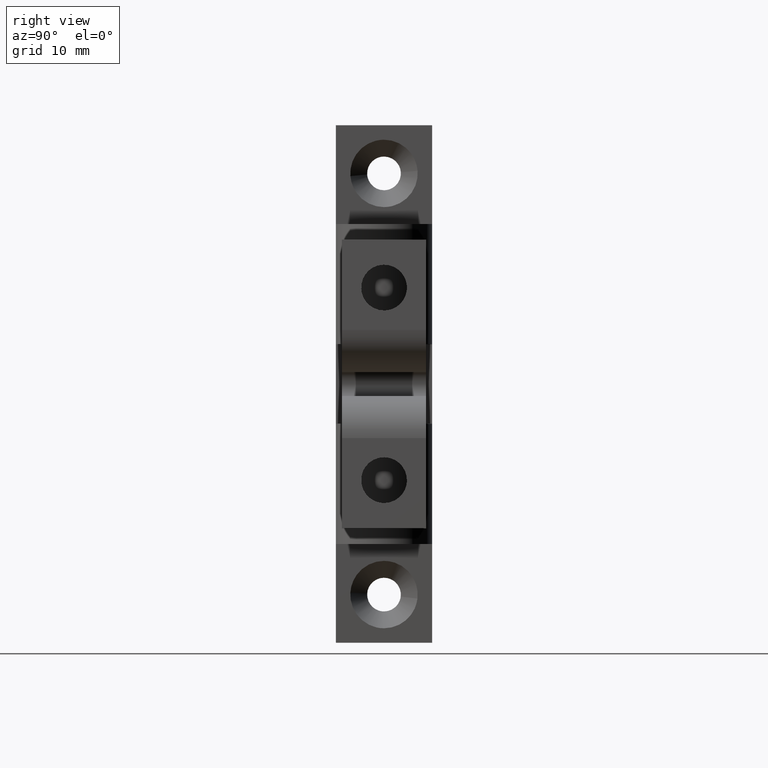
[diagram: clean part render]
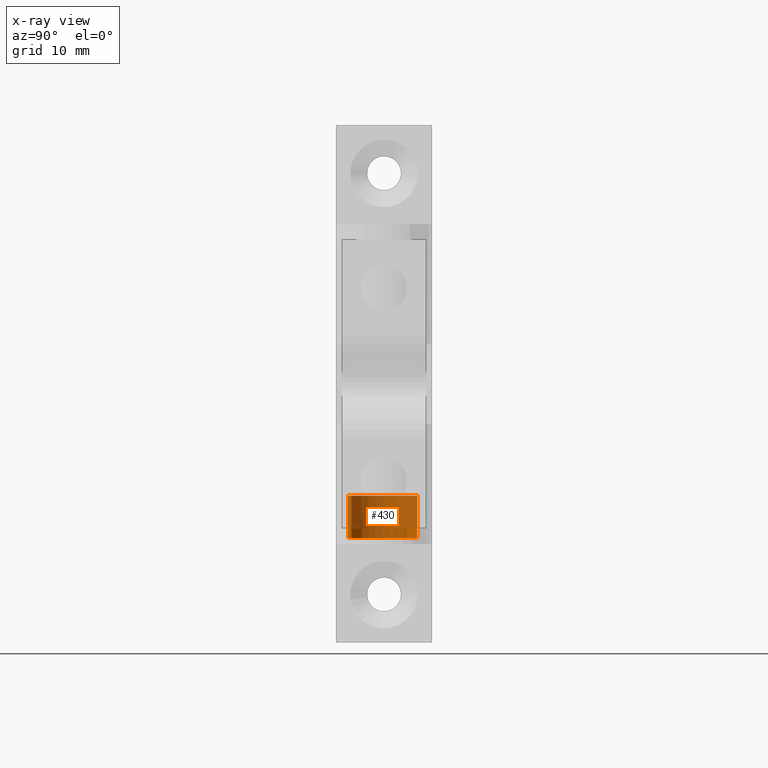
[diagram: x-ray — body ghosted, one internal face saturated and labeled with its STEP entity id]
A machine part, right view, then the same camera in x-ray: the body is ghosted and one INTERNAL B-rep face — a face not visible from any outside direction — is saturated and labeled: STEP entity #430.
In plain terms, the highlighted face is a freeform B-spline surface patch.
Its self-contained STEP definition (entity closure, byte-faithful):
#233=CARTESIAN_POINT('',(4.667506451654081,-2.687835735980983,9.299999999999997));
#234=VERTEX_POINT('',#233);
#250=CARTESIAN_POINT('',(4.667506213767451,-2.687835618048776,12.800000000000001));
#251=VERTEX_POINT('',#250);
#252=CARTESIAN_POINT('',(4.667506213767451,-2.687835618048776,12.800000000000001));
#253=CARTESIAN_POINT('',(4.667506451654081,-2.687835735980983,9.299999999999997));
#254=QUASI_UNIFORM_CURVE('',1,(#252,#253),.UNSPECIFIED.,.F.,.U.);
#255=EDGE_CURVE('',#251,#234,#254,.T.);
#289=CARTESIAN_POINT('',(7.176592358969756,2.759643169107653,12.800000000000001));
#290=VERTEX_POINT('',#289);
#304=CARTESIAN_POINT('',(7.176589245782071,2.759644496436086,9.299999999999999));
#305=VERTEX_POINT('',#304);
#306=CARTESIAN_POINT('',(7.176592358969756,2.759643169107653,12.800000000000001));
#307=CARTESIAN_POINT('',(7.176589245782071,2.759644496436086,9.299999999999999));
#308=QUASI_UNIFORM_CURVE('',1,(#306,#307),.UNSPECIFIED.,.F.,.U.);
#309=EDGE_CURVE('',#290,#305,#308,.T.);
#329=CARTESIAN_POINT('',(7.176589245764966,2.759644496443378,12.887499999999999));
#330=CARTESIAN_POINT('',(9.936233742208344,1.583055250678412,12.887500000000003));
#331=CARTESIAN_POINT('',(8.759644496443379,-1.176589245764965,12.887499999999999));
#332=CARTESIAN_POINT('',(7.583055250678412,-3.936233742208343,12.887500000000003));
#333=CARTESIAN_POINT('',(4.823410754235034,-2.759644496443378,12.887499999999999));
#334=CARTESIAN_POINT('',(4.744430914370290,-2.725971017726514,12.887500000000005));
#335=CARTESIAN_POINT('',(4.667506213754206,-2.687835618042209,12.887500000000003));
#336=CARTESIAN_POINT('',(7.176589245764966,2.759644496443378,9.210312499999997));
#337=CARTESIAN_POINT('',(9.936233742208344,1.583055250678412,9.210312499999997));
#338=CARTESIAN_POINT('',(8.759644496443379,-1.176589245764965,9.210312499999997));
#339=CARTESIAN_POINT('',(7.583055250678412,-3.936233742208343,9.210312499999997));
#340=CARTESIAN_POINT('',(4.823410754235034,-2.759644496443378,9.210312499999997));
#341=CARTESIAN_POINT('',(4.744430914370290,-2.725971017726514,9.210312499999997));
#342=CARTESIAN_POINT('',(4.667506213754206,-2.687835618042209,9.210312499999997));
#350=(BOUNDED_SURFACE()B_SPLINE_SURFACE(2,1,((#329,#336),(#330,#337),(#331,#338),(#332,#339),(#333,#340),(#334,#341),(#335,#342)),.UNSPECIFIED.,.F.,.F.,.U.)B_SPLINE_SURFACE_WITH_KNOTS((3,2,2,3),(2,2),(0.0,4.970562748477140,9.941125496954280,10.139948006893370),(0.0,3.677187500000009),.UNSPECIFIED.)GEOMETRIC_REPRESENTATION_ITEM()RATIONAL_B_SPLINE_SURFACE(((1.0,1.0),(0.707106781186548,0.707106781186548),(1.0,1.0),(0.707106781186548,0.707106781186548),(1.0,1.0),(0.988284271247462,0.988284271247462),(0.977505800795127,0.977505800795127)))REPRESENTATION_ITEM('')SURFACE());
#351=CARTESIAN_POINT('',(9.000000000000002,0.0,9.299999999999999));
#352=VERTEX_POINT('',#351);
#353=CARTESIAN_POINT('',(9.000000000000002,0.0,9.299999999999999));
#354=CARTESIAN_POINT('',(9.000000000000002,-3.0,9.299999999999999));
#355=CARTESIAN_POINT('',(6.0,-3.0,9.299999999999999));
#356=CARTESIAN_POINT('',(5.297187887624553,-3.000000000000000,9.299999999999999));
#357=CARTESIAN_POINT('',(4.667506451654081,-2.687835735980983,9.299999999999997));
#365=(BOUNDED_CURVE()B_SPLINE_CURVE(2,(#353,#354,#355,#356,#357),.UNSPECIFIED.,.F.,.U.)B_SPLINE_CURVE_WITH_KNOTS((3,2,3),(0.500000000000000,0.750000000000000,0.825500752015824),.UNSPECIFIED.)CURVE()GEOMETRIC_REPRESENTATION_ITEM()RATIONAL_B_SPLINE_CURVE((1.0,0.707106781186548,1.0,0.911545366876997,0.876517864314557))REPRESENTATION_ITEM(''));
#366=EDGE_CURVE('',#352,#234,#365,.T.);
#367=ORIENTED_EDGE('',*,*,#366,.F.);
#368=CARTESIAN_POINT('',(7.176589245782071,2.759644496436086,9.299999999999999));
#369=CARTESIAN_POINT('',(9.0,1.982223532662053,9.299999999999999));
#370=CARTESIAN_POINT('',(9.000000000000002,0.0,9.299999999999999));
#378=(BOUNDED_CURVE()B_SPLINE_CURVE(2,(#368,#369,#370),.UNSPECIFIED.,.F.,.U.)B_SPLINE_CURVE_WITH_KNOTS((3,3),(0.316589862256252,0.500000000000000),.UNSPECIFIED.)CURVE()GEOMETRIC_REPRESENTATION_ITEM()RATIONAL_B_SPLINE_CURVE((0.885530246207400,0.785121657572859,1.0))REPRESENTATION_ITEM(''));
#379=EDGE_CURVE('',#305,#352,#378,.T.);
#380=ORIENTED_EDGE('',*,*,#379,.F.);
#381=ORIENTED_EDGE('',*,*,#309,.F.);
#382=CARTESIAN_POINT('',(8.445242188630418,-1.738042185604785,12.800000000000001));
#383=VERTEX_POINT('',#382);
#384=CARTESIAN_POINT('',(7.176592358969756,2.759643169107653,12.799999999999997));
#385=CARTESIAN_POINT('',(7.710679855547977,2.531931385742310,12.799999999999997));
#386=CARTESIAN_POINT('',(8.121244275583015,2.121396408808664,12.800000000000001));
#387=CARTESIAN_POINT('',(9.914176158414403,0.328593103790253,12.800000000000001));
#388=CARTESIAN_POINT('',(8.445242188630427,-1.738042185604791,12.800000000000001));
#396=(BOUNDED_CURVE()B_SPLINE_CURVE(2,(#384,#385,#386,#387,#388),.UNSPECIFIED.,.F.,.U.)B_SPLINE_CURVE_WITH_KNOTS((3,2,3),(0.360005485324306,0.500000000000000,1.0),.UNSPECIFIED.)CURVE()GEOMETRIC_REPRESENTATION_ITEM()RATIONAL_B_SPLINE_CURVE((0.904749601077363,0.933854897490776,1.0,0.763758234876370,1.0))REPRESENTATION_ITEM(''));
#397=EDGE_CURVE('',#290,#383,#396,.T.);
#398=ORIENTED_EDGE('',*,*,#397,.T.);
#399=CARTESIAN_POINT('',(7.738217544833930,-2.445117536404225,12.800000000000001));
#400=VERTEX_POINT('',#399);
#401=CARTESIAN_POINT('',(7.738217544833932,-2.445117536404231,12.800000000000001));
#402=CARTESIAN_POINT('',(8.151483704890213,-2.151329413992592,12.800000000000002));
#403=CARTESIAN_POINT('',(8.445242188630427,-1.738042185604791,12.800000000000001));
#411=(BOUNDED_CURVE()B_SPLINE_CURVE(2,(#401,#402,#403),.UNSPECIFIED.,.F.,.U.)CURVE()GEOMETRIC_REPRESENTATION_ITEM()QUASI_UNIFORM_CURVE()RATIONAL_B_SPLINE_CURVE((1.0,0.986015559396001,1.0))REPRESENTATION_ITEM(''));
#412=EDGE_CURVE('',#400,#383,#411,.T.);
#413=ORIENTED_EDGE('',*,*,#412,.F.);
#414=CARTESIAN_POINT('',(7.738217544833933,-2.445117536404231,12.800000000000001));
#415=CARTESIAN_POINT('',(6.275463083833216,-3.484979804798355,12.800000000000008));
#416=CARTESIAN_POINT('',(4.667506213767451,-2.687835618048776,12.799999999999997));
#424=(BOUNDED_CURVE()B_SPLINE_CURVE(2,(#414,#415,#416),.UNSPECIFIED.,.F.,.U.)B_SPLINE_CURVE_WITH_KNOTS((3,3),(0.0,0.380154846589327),.UNSPECIFIED.)CURVE()GEOMETRIC_REPRESENTATION_ITEM()RATIONAL_B_SPLINE_CURVE((1.0,0.820383096042861,0.913895138360426))REPRESENTATION_ITEM(''));
#425=EDGE_CURVE('',#400,#251,#424,.T.);
#426=ORIENTED_EDGE('',*,*,#425,.T.);
#427=ORIENTED_EDGE('',*,*,#255,.T.);
#428=EDGE_LOOP('',(#367,#380,#381,#398,#413,#426,#427));
#429=FACE_OUTER_BOUND('',#428,.T.);
#430=ADVANCED_FACE('',(#429),#350,.T.);